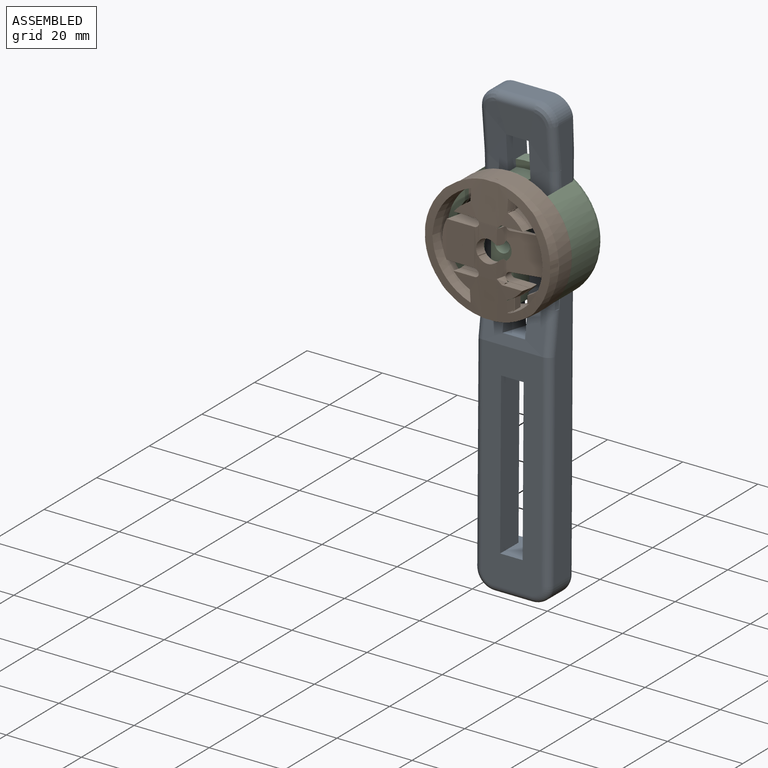
[diagram: assembled view]
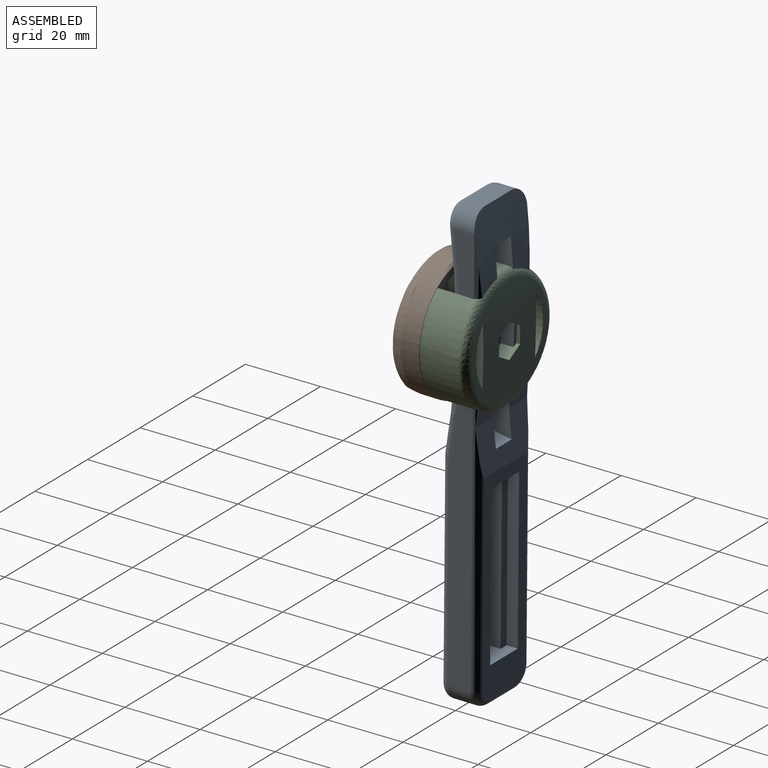
[diagram: assembled view, second angle]
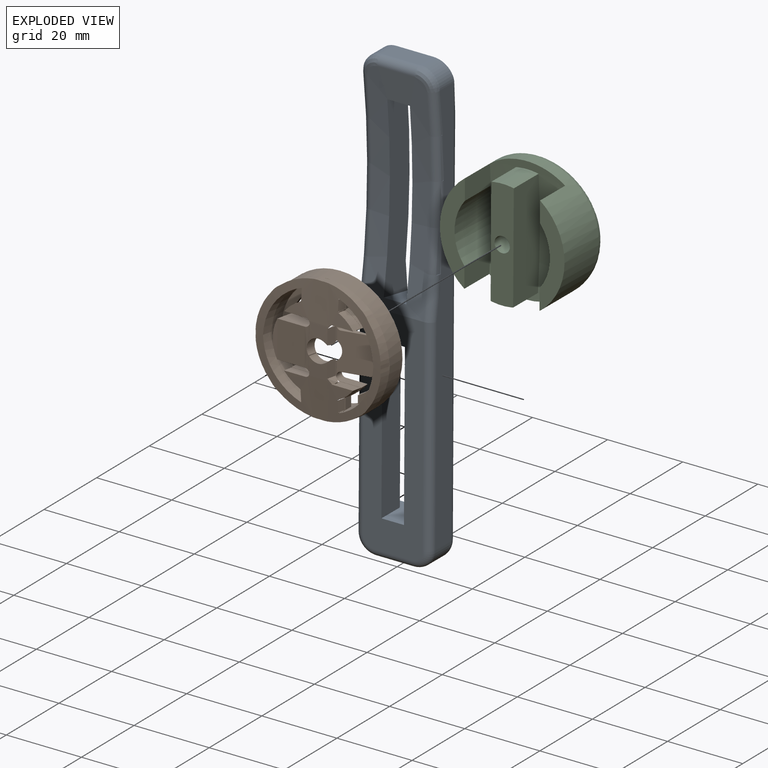
[diagram: exploded view]
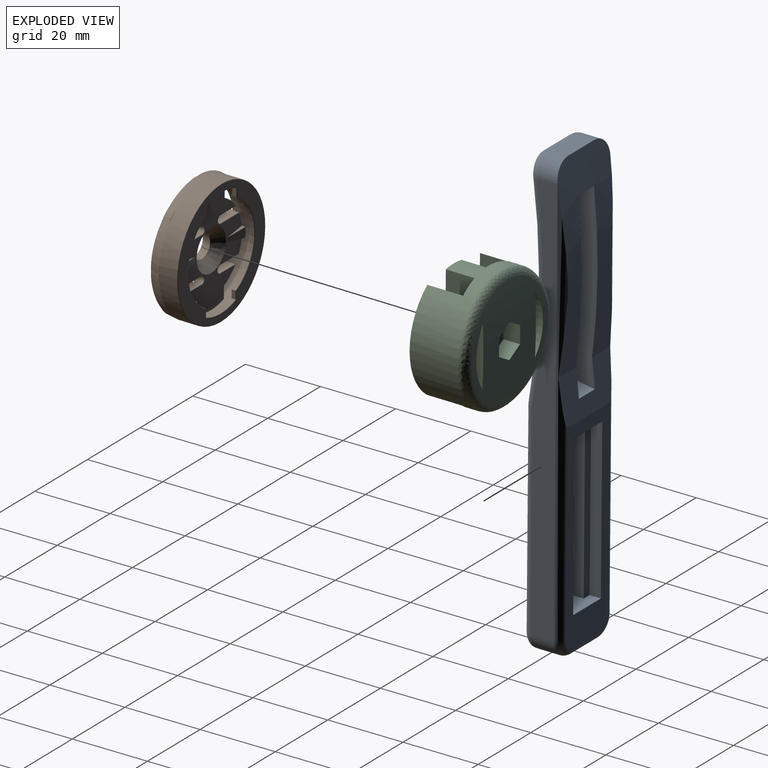
[diagram: exploded view, second angle]
ASSEMBLY  parts=3 mates=2
PART A: 40 faces, bbox 20.8x10x120.4 mm
  f0: plane 7x6mm, normal (0,-0.17,-0.98), area 42.6mm2, adj f1,f2,f12,f39
  f1: plane 42.68x7mm, normal (1,0,0), area 294.5mm2, adj f0,f11,f12,f39
  f2: plane 42.68x7mm, normal (-1,0,0), area 294.5mm2, adj f0,f11,f12,f39
  f3: plane 54.16x16mm, normal (0,1,0), area 414.5mm2, adj f11,f30,f31,f32,f33,f34,f35,f36
  f4: plane 10x5.15mm, normal (0,0,1), area 51.5mm2, adj f14,f15,f18,f23
  f5: plane 48.83x9.56mm, normal (1,0,0), area 365.4mm2, adj f9,f13,f14,f29,f30
  f6: plane 48.83x9.56mm, normal (-1,0,0), area 365.4mm2, adj f9,f13,f14,f29,f30
  f7: plane 110x6mm, normal (-1,0,0), area 561.4mm2, adj f15,f16,f27,f28,f31
  f8: plane 110x6mm, normal (1,0,0), area 561.4mm2, adj f17,f18,f19,f20,f35
  f9: plane 7.5x6mm, normal (0,0,-1), area 45mm2, adj f5,f6,f13,f14
  f10: plane 10x6mm, normal (0,0,-1), area 60mm2, adj f16,f17,f24,f33
  f11: plane 10.5x10mm, normal (0,0,1), area 73.5mm2, adj f1,f2,f3,f12,f36,f38,f39
  f12: plane 58x16mm, normal (0,-1,0), area 668mm2, adj f0,f1,f2,f11,f13,f20,f22,f24
  f13: cylinder r=181.25mm len=57.69mm, axis (1,0,0), area 633.8mm2, adj f5,f6,f9,f12,f19,f21,f23,f25
  f14: cylinder r=181.25mm len=51.37mm, axis (1,0,0), area 751.6mm2, adj f4,f5,f6,f9,f15,f18,f30,f31
  f15: cylinder r=5mm len=5.87mm, axis (0,-1,0), area 41.7mm2, adj f4,f7,f14,f25,f31
  f16: cylinder r=5mm len=6mm, axis (0,1,0), area 47.1mm2, adj f7,f10,f26,f32
  f17: cylinder r=5mm len=6mm, axis (0,-1,0), area 47.1mm2, adj f8,f10,f22,f34
  f18: cylinder r=5mm len=5.87mm, axis (0,1,0), area 41.7mm2, adj f4,f8,f14,f21,f35
  f19: torus R=183.25mm, axis (1,0,0), area 173mm2, adj f8,f13,f20,f21
  f20: cylinder r=2mm len=55mm, axis (0,0,1), area 172.5mm2, adj f8,f12,f19,f22
  f21: bspline ~6.37x6.2mm, area 22.6mm2, adj f13,f18,f19,f23
  f22: torus R=3mm, axis (0,-1,0), area 21.1mm2, adj f12,f17,f20,f24
  f23: cylinder r=2mm len=10mm, axis (1,0,0), area 34.5mm2, adj f4,f13,f21,f25
  f24: cylinder r=2mm len=10mm, axis (1,0,0), area 31.4mm2, adj f10,f12,f22,f26
  f25: bspline ~6.2x5.55mm, area 22.6mm2, adj f13,f15,f23,f27
  f26: torus R=3mm, axis (0,-1,0), area 21.1mm2, adj f12,f16,f24,f28
  f27: torus R=183.25mm, axis (1,0,0), area 173mm2, adj f7,f13,f25,f28
  f28: cylinder r=2mm len=55mm, axis (0,0,-1), area 172.5mm2, adj f7,f12,f26,f27
  f29: plane 9.05x6mm, normal (0,0.17,0.98), area 55.1mm2, adj f5,f6,f13,f30
  f30: plane 19.72x12.47mm, normal (0,0.99,0.1), area 189.3mm2, adj f3,f5,f6,f14,f29,f31,f35
  f31: cylinder r=2mm len=110.35mm, axis (0,0,-1), area 266.8mm2, adj f3,f7,f14,f15,f30,f32
  f32: torus R=3mm, axis (0,-1,0), area 21.1mm2, adj f3,f16,f31,f33
  f33: cylinder r=2mm len=10mm, axis (-1,0,0), area 31.4mm2, adj f3,f10,f32,f34
  f34: torus R=3mm, axis (0,-1,0), area 21.1mm2, adj f3,f17,f33,f35
  f35: cylinder r=2mm len=110.35mm, axis (0,0,-1), area 267.2mm2, adj f3,f8,f14,f18,f30,f34
  f36: plane 42.68x3mm, normal (1,0,0), area 128mm2, adj f3,f11,f37,f39
  f37: plane 10.5x3mm, normal (0,0,-1), area 31.5mm2, adj f3,f36,f38,f39
  f38: plane 42.68x3mm, normal (-1,0,0), area 128mm2, adj f3,f11,f37,f39
  f39: plane 42.68x10.5mm, normal (0,1,0), area 199.5mm2, adj f0,f1,f2,f11,f36,f37,f38
PART B: 297 faces, bbox 36.2x7.7x36.2 mm
  f0: plane 3.71x0.2mm, normal (-1,0,0), area 0.4mm2, adj f2,f36,f62,f156,f294
  f1: plane 3.71x0.2mm, normal (1,0,0), area 0.4mm2, adj f3,f15,f52,f157,f294
  f2: cylinder r=0.1mm len=3.74mm, axis (0,0,1), area 0.6mm2, adj f0,f9,f127,f294
  f3: cylinder r=0.1mm len=3.74mm, axis (0,0,-1), area 0.6mm2, adj f1,f12,f142,f294
  f4: plane 3.71x0.2mm, normal (-1,0,0), area 0.4mm2, adj f6,f49,f62,f150,f294
  f5: plane 3.71x0.2mm, normal (1,0,0), area 0.4mm2, adj f7,f17,f43,f163,f294
  f6: cylinder r=0.1mm len=3.74mm, axis (0,0,1), area 0.6mm2, adj f4,f10,f126,f294
  f7: cylinder r=0.1mm len=3.74mm, axis (0,0,-1), area 0.6mm2, adj f5,f14,f141,f294
  f8: cylinder r=181.25mm len=33.2mm, axis (1,0,0), area 426.1mm2, adj f9,f10,f11,f12,f13,f14,f228,f229
  f9: plane 4.23x2.52mm, normal (-0.98,0.21,0), area 10.3mm2, adj f2,f8,f13,f253,f294,f295
  f10: plane 4.23x2.52mm, normal (-0.98,0.21,0), area 10.3mm2, adj f6,f8,f11,f268,f294,f296
  f11: extruded ~5.29x2.24mm, area 11.7mm2, adj f8,f10,f12,f294,f296
  f12: plane 4.22x2.51mm, normal (0.98,-0.21,0), area 10.5mm2, adj f3,f8,f11,f269,f294
  f13: extruded ~5.29x2.24mm, area 11.6mm2, adj f8,f9,f14,f294,f295
  f14: plane 4.22x2.51mm, normal (0.98,-0.21,0), area 10.5mm2, adj f7,f8,f13,f287,f294
  f15: plane 3.99x2.75mm, normal (-0.98,0.21,0), area 10.5mm2, adj f1,f16,f288,f293,f294
  f16: extruded ~3.32x2.38mm, area 8.2mm2, adj f15,f17,f288,f294
  f17: plane 3.99x2.75mm, normal (-0.98,0.21,0), area 10.5mm2, adj f5,f16,f288,f289,f294
  f18: cylinder r=14.6mm len=29.2mm, axis (0,1,0), area 316.3mm2, adj f64,f66,f67,f70,f78,f81,f92,f94
  f19: cylinder r=11.7mm len=2.81mm, axis (0,1,0), area 2.5mm2, adj f56,f57,f60,f153
  f20: cylinder r=11.7mm len=2.01mm, axis (0,1,0), area 0.2mm2, adj f106,f153,f205
  f21: cylinder r=11.7mm len=2.01mm, axis (0,1,0), area 0.2mm2, adj f104,f160,f186
  f22: cylinder r=11.7mm len=2.81mm, axis (0,1,0), area 2.5mm2, adj f58,f59,f61,f160
  f23: cylinder r=16.7mm len=33.4mm, axis (0,1,0), area 512.5mm2, adj f63,f166,f167,f168,f169,f170,f171,f172
  f24: plane 29x23.03mm, normal (0,-1,0), area 297.2mm2, adj f56,f57,f58,f59,f60,f61,f178,f179
  f25: plane 33.2x33.2mm, normal (0,-1,0), area 311.5mm2, adj f63,f73,f74,f76,f77,f78,f79,f80
  f26: plane 2.07x1mm, normal (1,0,0), area 2.1mm2, adj f67,f68,f77,f90
  f27: cylinder r=12.6mm len=22.47mm, axis (0,-1,0), area 27.7mm2, adj f68,f69,f73,f89
  f28: plane 2.07x1mm, normal (1,0,0), area 2.1mm2, adj f69,f70,f74,f93
  f29: plane 26.62x8.75mm, normal (0,1,0), area 55.5mm2, adj f89,f90,f93,f94
  f30: plane 2.07x1mm, normal (-1,0,0), area 2.1mm2, adj f64,f65,f82,f98
  f31: cylinder r=12.6mm len=22.47mm, axis (0,-1,0), area 27.7mm2, adj f65,f71,f86,f97
  f32: plane 2.07x1mm, normal (-1,0,0), area 2.1mm2, adj f66,f71,f85,f101
  f33: plane 26.62x8.75mm, normal (0,1,0), area 55.5mm2, adj f97,f98,f101,f102
  f34: cylinder r=11.7mm len=2.01mm, axis (0,1,0), area 0.2mm2, adj f107,f153,f196
  f35: plane 7.01x1.68mm, normal (0,0,1), area 6.4mm2, adj f36,f107,f155,f198
  f36: cylinder r=1mm len=2.1mm, axis (0,1,0), area 6.1mm2, adj f0,f35,f37,f127,f156,f199
  f37: plane 5.67x2.1mm, normal (0,0,-1), area 11.9mm2, adj f36,f108,f128,f200
  f38: cylinder r=11.7mm len=4.2mm, axis (0,1,0), area 11.4mm2, adj f108,f109,f130,f131,f202
  f39: plane 2.93x2.1mm, normal (-1,0,0), area 6.2mm2, adj f109,f110,f133,f204
  f40: plane 2.93x2.1mm, normal (1,0,0), area 6.2mm2, adj f111,f112,f136,f178
  f41: cylinder r=11.7mm len=4.2mm, axis (0,1,0), area 11.4mm2, adj f112,f113,f138,f180
  f42: plane 5.67x2.1mm, normal (0,0,-1), area 11.9mm2, adj f43,f113,f140,f182
  f43: cylinder r=1mm len=2.1mm, axis (0,1,0), area 6.1mm2, adj f5,f42,f44,f141,f163,f183
  f44: plane 7.01x1.68mm, normal (0,0,1), area 6.4mm2, adj f43,f104,f162,f184
  f45: cylinder r=11.7mm len=2.01mm, axis (0,1,0), area 0.2mm2, adj f105,f160,f195
  f46: plane 2.93x2.1mm, normal (-1,0,0), area 6.2mm2, adj f117,f118,f121,f213
  f47: cylinder r=11.7mm len=4.2mm, axis (0,1,0), area 11.4mm2, adj f118,f119,f123,f211
  f48: plane 5.67x2.1mm, normal (0,0,1), area 11.9mm2, adj f49,f119,f125,f209
  f49: cylinder r=1mm len=2.1mm, axis (0,1,0), area 6.1mm2, adj f4,f48,f50,f126,f150,f208
  f50: plane 7.01x1.68mm, normal (0,0,-1), area 6.4mm2, adj f49,f106,f151,f207
  f51: plane 7.01x1.68mm, normal (0,0,-1), area 6.4mm2, adj f52,f105,f158,f193
  f52: cylinder r=1mm len=2.1mm, axis (0,1,0), area 6.1mm2, adj f1,f51,f53,f142,f157,f192
  f53: plane 5.67x2.1mm, normal (0,0,1), area 11.9mm2, adj f52,f115,f143,f191
  f54: cylinder r=11.7mm len=4.2mm, axis (0,1,0), area 11.4mm2, adj f114,f115,f145,f146,f189
  f55: plane 2.93x2.1mm, normal (1,0,0), area 6.2mm2, adj f114,f116,f148,f187
  f56: plane 5.43x0.96mm, normal (0.14,-0.14,-0.98), area 2.5mm2, adj f19,f24,f60,f153,f205
  f57: plane 5.43x0.96mm, normal (0.14,-0.14,0.98), area 2.5mm2, adj f19,f24,f60,f153,f196
  f58: plane 5.43x0.96mm, normal (-0.14,-0.14,0.98), area 2.5mm2, adj f22,f24,f61,f160,f186
  f59: plane 5.43x0.96mm, normal (-0.14,-0.14,-0.98), area 2.5mm2, adj f22,f24,f61,f160,f195
  f60: plane 5.52x2.57mm, normal (0.16,-0.99,0), area 10.4mm2, adj f19,f24,f56,f57
  f61: plane 5.52x2.57mm, normal (-0.16,-0.99,0), area 10.4mm2, adj f22,f24,f58,f59
  f62: plane 11.18x9.12mm, normal (-0.21,0.98,0), area 83.8mm2, adj f0,f4,f150,f151,f153,f155,f156,f294
  f63: torus R=16.6mm, axis (0,-1,0), area 16.4mm2, adj f23,f25
  f64: cylinder r=0.1mm len=1mm, axis (0,1,0), area 0.1mm2, adj f18,f30,f80,f100
  f65: cylinder r=0.1mm len=1mm, axis (0,-1,0), area 0.1mm2, adj f30,f31,f84,f96
  f66: cylinder r=0.1mm len=1mm, axis (0,1,0), area 0.1mm2, adj f18,f32,f83,f103
  f67: cylinder r=0.1mm len=1mm, axis (0,1,0), area 0.1mm2, adj f18,f26,f79,f92
  f68: cylinder r=0.1mm len=1mm, axis (0,-1,0), area 0.1mm2, adj f26,f27,f75,f88
  f69: cylinder r=0.1mm len=1mm, axis (0,-1,0), area 0.1mm2, adj f27,f28,f72,f91
  f70: cylinder r=0.1mm len=1mm, axis (0,1,0), area 0.1mm2, adj f18,f28,f76,f95
  f71: cylinder r=0.1mm len=1mm, axis (0,-1,0), area 0.1mm2, adj f31,f32,f87,f99
  f72: sphere r=0.1mm, area 0mm2, adj f69,f73,f74
  f73: torus R=12.7mm, axis (0,-1,0), area 4.4mm2, adj f25,f27,f72,f75
  f74: cylinder r=0.1mm len=2.07mm, axis (0,0,1), area 0.3mm2, adj f25,f28,f72,f76
  f75: sphere r=0.1mm, area 0mm2, adj f68,f73,f77
  f76: torus R=0.2mm, axis (0,-1,0), area 0mm2, adj f25,f70,f74,f78
  f77: cylinder r=0.1mm len=2.07mm, axis (0,0,1), area 0.3mm2, adj f25,f26,f75,f79
  f78: torus R=14.7mm, axis (0,-1,0), area 1.8mm2, adj f18,f25,f76,f80
  f79: torus R=0.2mm, axis (0,-1,0), area 0mm2, adj f25,f67,f77,f81
  f80: torus R=0.2mm, axis (0,-1,0), area 0mm2, adj f25,f64,f78,f82
  f81: torus R=14.7mm, axis (0,-1,0), area 1.8mm2, adj f18,f25,f79,f83
  f82: cylinder r=0.1mm len=2.07mm, axis (0,0,-1), area 0.3mm2, adj f25,f30,f80,f84
  f83: torus R=0.2mm, axis (0,-1,0), area 0mm2, adj f25,f66,f81,f85
  f84: sphere r=0.1mm, area 0mm2, adj f65,f82,f86
  f85: cylinder r=0.1mm len=2.07mm, axis (0,0,-1), area 0.3mm2, adj f25,f32,f83,f87
  f86: torus R=12.7mm, axis (0,-1,0), area 4.4mm2, adj f25,f31,f84,f87
  f87: sphere r=0.1mm, area 0mm2, adj f71,f85,f86
  f88: sphere r=0.1mm, area 0mm2, adj f68,f89,f90
  f89: torus R=12.7mm, axis (0,-1,0), area 4.4mm2, adj f27,f29,f88,f91
  f90: cylinder r=0.1mm len=2.07mm, axis (0,0,-1), area 0.3mm2, adj f26,f29,f88,f92
  f91: sphere r=0.1mm, area 0mm2, adj f69,f89,f93
  f92: bspline ~0.24x0.22mm, area 0mm2, adj f18,f67,f90,f94
  f93: cylinder r=0.1mm len=2.07mm, axis (0,0,-1), area 0.3mm2, adj f28,f29,f91,f95
  f94: torus R=14.5mm, axis (0,-1,0), area 5.3mm2, adj f18,f29,f92,f95
  f95: bspline ~0.25x0.22mm, area 0mm2, adj f18,f70,f93,f94
  f96: sphere r=0.1mm, area 0mm2, adj f65,f97,f98
  f97: torus R=12.7mm, axis (0,1,0), area 4.4mm2, adj f31,f33,f96,f99
  f98: cylinder r=0.1mm len=2.07mm, axis (0,0,-1), area 0.3mm2, adj f30,f33,f96,f100
  f99: sphere r=0.1mm, area 0mm2, adj f71,f97,f101
  f100: bspline ~0.24x0.22mm, area 0mm2, adj f18,f64,f98,f102
  f101: cylinder r=0.1mm len=2.07mm, axis (0,0,-1), area 0.3mm2, adj f32,f33,f99,f103
  f102: torus R=14.5mm, axis (0,1,0), area 5.3mm2, adj f18,f33,f100,f103
  f103: bspline ~0.25x0.22mm, area 0mm2, adj f18,f66,f101,f102
  f104: cylinder r=0.1mm len=0.16mm, axis (0,1,0), area 0mm2, adj f21,f44,f161,f185
  f105: cylinder r=0.1mm len=0.16mm, axis (0,1,0), area 0mm2, adj f45,f51,f159,f194
  f106: cylinder r=0.1mm len=0.16mm, axis (0,1,0), area 0mm2, adj f20,f50,f152,f206
  f107: cylinder r=0.1mm len=0.16mm, axis (0,1,0), area 0mm2, adj f34,f35,f154,f197
  f108: cylinder r=0.1mm len=2.1mm, axis (0,1,0), area 0.5mm2, adj f37,f38,f129,f201
  f109: cylinder r=0.1mm len=2.1mm, axis (0,1,0), area 0.2mm2, adj f38,f39,f132,f203
  f110: cylinder r=0.1mm len=2.1mm, axis (0,1,0), area 0.4mm2, adj f18,f39,f134,f219
  f111: cylinder r=0.1mm len=2.1mm, axis (0,1,0), area 0.4mm2, adj f18,f40,f135,f217
  f112: cylinder r=0.1mm len=2.1mm, axis (0,1,0), area 0.2mm2, adj f40,f41,f137,f179
  f113: cylinder r=0.1mm len=2.1mm, axis (0,1,0), area 0.5mm2, adj f41,f42,f139,f181
  f114: cylinder r=0.1mm len=2.1mm, axis (0,1,0), area 0.2mm2, adj f54,f55,f147,f188
  f115: cylinder r=0.1mm len=2.1mm, axis (0,1,0), area 0.5mm2, adj f53,f54,f144,f190
  f116: cylinder r=0.1mm len=2.1mm, axis (0,1,0), area 0.4mm2, adj f18,f55,f149,f216
  f117: cylinder r=0.1mm len=2.1mm, axis (0,1,0), area 0.4mm2, adj f18,f46,f120,f214
  f118: cylinder r=0.1mm len=2.1mm, axis (0,1,0), area 0.2mm2, adj f46,f47,f122,f212
  f119: cylinder r=0.1mm len=2.1mm, axis (0,1,0), area 0.5mm2, adj f47,f48,f124,f210
  f120: torus R=0.2mm, axis (0,-1,0), area 0mm2, adj f18,f117,f121,f263
  f121: cylinder r=0.1mm len=2.93mm, axis (0,0,-1), area 0.5mm2, adj f46,f120,f122,f264
  f122: torus R=0.2mm, axis (0,-1,0), area 0mm2, adj f118,f121,f123,f265
  f123: torus R=11.6mm, axis (0,-1,0), area 0.9mm2, adj f47,f122,f124,f266
  f124: sphere r=0.1mm, area 0mm2, adj f119,f123,f125
  f125: cylinder r=0.1mm len=5.67mm, axis (-1,0,0), area 0.9mm2, adj f48,f124,f126,f267
  f126: torus R=1.1mm, axis (0,-1,0), area 0.3mm2, adj f6,f49,f125,f268
  f127: torus R=1.1mm, axis (0,-1,0), area 0.3mm2, adj f2,f36,f128,f253
  f128: cylinder r=0.1mm len=5.67mm, axis (1,0,0), area 0.9mm2, adj f37,f127,f129,f254
  f129: sphere r=0.1mm, area 0mm2, adj f108,f128,f130
  f130: torus R=11.6mm, axis (0,-1,0), area 0.2mm2, adj f38,f129,f131,f255
  f131: torus R=11.6mm, axis (0,-1,0), area 0.6mm2, adj f38,f130,f132,f255
  f132: torus R=0.2mm, axis (0,-1,0), area 0mm2, adj f109,f131,f133,f256
  f133: cylinder r=0.1mm len=2.93mm, axis (0,0,-1), area 0.5mm2, adj f39,f132,f134,f257
  f134: torus R=0.2mm, axis (0,-1,0), area 0mm2, adj f18,f110,f133,f258
  f135: torus R=0.2mm, axis (0,-1,0), area 0mm2, adj f18,f111,f136,f279
  f136: cylinder r=0.1mm len=2.93mm, axis (0,0,1), area 0.5mm2, adj f40,f135,f137,f280
  f137: torus R=0.2mm, axis (0,-1,0), area 0mm2, adj f112,f136,f138,f281
  f138: torus R=11.6mm, axis (0,-1,0), area 0.9mm2, adj f41,f137,f139,f282
  f139: sphere r=0.1mm, area 0mm2, adj f113,f138,f140
  f140: cylinder r=0.1mm len=5.67mm, axis (1,0,0), area 0.9mm2, adj f42,f139,f141,f283
  f141: torus R=1.1mm, axis (0,-1,0), area 0.3mm2, adj f7,f43,f140,f287
  f142: torus R=1.1mm, axis (0,-1,0), area 0.3mm2, adj f3,f52,f143,f269
  f143: cylinder r=0.1mm len=5.67mm, axis (-1,0,0), area 0.9mm2, adj f53,f142,f144,f270
  f144: sphere r=0.1mm, area 0mm2, adj f115,f143,f145
  f145: torus R=11.6mm, axis (0,-1,0), area 0.2mm2, adj f54,f144,f146,f271
  f146: torus R=11.6mm, axis (0,-1,0), area 0.6mm2, adj f54,f145,f147,f271
  f147: torus R=0.2mm, axis (0,-1,0), area 0mm2, adj f114,f146,f148,f272
  f148: cylinder r=0.1mm len=2.93mm, axis (0,0,1), area 0.5mm2, adj f55,f147,f149,f273
  f149: torus R=0.2mm, axis (0,-1,0), area 0mm2, adj f18,f116,f148,f274
  f150: bspline ~1.15x1.1mm, area 0.2mm2, adj f4,f49,f62,f151
  f151: cylinder r=0.1mm len=7.04mm, axis (0.98,0.21,0), area 1.1mm2, adj f50,f62,f150,f152
  f152: sphere r=0.1mm, area 0mm2, adj f106,f151,f153
  f153: bspline ~12.58x1.89mm, area 1.3mm2, adj f19,f20,f34,f56,f57,f62,f152,f154
  f154: sphere r=0.1mm, area 0mm2, adj f107,f153,f155
  f155: cylinder r=0.1mm len=7.04mm, axis (-0.98,-0.21,0), area 1.1mm2, adj f35,f62,f154,f156
  f156: bspline ~1.1x1.1mm, area 0.2mm2, adj f0,f36,f62,f155
  f157: bspline ~1.1x1.1mm, area 0.2mm2, adj f1,f52,f158,f293
  f158: cylinder r=0.1mm len=7.04mm, axis (0.98,-0.21,0), area 1.1mm2, adj f51,f157,f159,f292
  f159: sphere r=0.1mm, area 0mm2, adj f105,f158,f160
  f160: bspline ~12.58x1.89mm, area 1.3mm2, adj f21,f22,f45,f58,f59,f159,f161,f186
  f161: sphere r=0.1mm, area 0mm2, adj f104,f160,f162
  f162: cylinder r=0.1mm len=7.04mm, axis (-0.98,0.21,0), area 1.1mm2, adj f44,f161,f163,f290
  f163: bspline ~1.1x1.1mm, area 0.2mm2, adj f5,f43,f162,f289
  f164: bspline ~6.23x0.62mm, area 0.3mm2, adj f18,f260,f261
  f165: bspline ~6.23x0.62mm, area 0.3mm2, adj f18,f276,f277
  f166: bspline ~2.17x1.96mm, area 0.1mm2, adj f23,f167,f284
  f167: torus R=16.8mm, axis (0,1,0), area 0.2mm2, adj f23,f166,f168,f252
  f168: bspline ~2.04x1.85mm, area 0.1mm2, adj f23,f167,f251
  f169: bspline ~2.04x1.85mm, area 0.1mm2, adj f23,f170,f230
  f170: torus R=16.8mm, axis (0,1,0), area 0.2mm2, adj f23,f169,f171,f231
  f171: bspline ~2.17x1.96mm, area 0.1mm2, adj f23,f170,f232
  f172: bspline ~2.17x1.96mm, area 0.1mm2, adj f23,f173,f239
  f173: torus R=16.8mm, axis (0,1,0), area 0.2mm2, adj f23,f172,f174,f238
  f174: bspline ~2.04x1.85mm, area 0.1mm2, adj f23,f173,f237
  f175: bspline ~2.17x1.96mm, area 0.1mm2, adj f23,f176,f246
  f176: torus R=16.8mm, axis (0,1,0), area 0.2mm2, adj f23,f175,f177,f245
  f177: bspline ~2.04x1.85mm, area 0.1mm2, adj f23,f176,f244
  f178: cylinder r=0.1mm len=3.01mm, axis (0,0,-1), area 0.5mm2, adj f24,f40,f179,f217
  f179: torus R=0.2mm, axis (0,-1,0), area 0mm2, adj f24,f112,f178,f180
  f180: torus R=11.6mm, axis (0,-1,0), area 0.9mm2, adj f24,f41,f179,f181
  f181: sphere r=0.1mm, area 0mm2, adj f113,f180,f182
  f182: cylinder r=0.1mm len=5.67mm, axis (-1,0,0), area 0.9mm2, adj f24,f42,f181,f183
  f183: torus R=1.1mm, axis (0,-1,0), area 0.5mm2, adj f24,f43,f182,f184
  f184: cylinder r=0.1mm len=7.01mm, axis (1,0,0), area 1.1mm2, adj f24,f44,f183,f185
  f185: sphere r=0.1mm, area 0mm2, adj f104,f184,f186
  f186: torus R=11.6mm, axis (0,-1,0), area 0.6mm2, adj f21,f24,f58,f160,f185
  f187: cylinder r=0.1mm len=3.01mm, axis (0,0,-1), area 0.5mm2, adj f24,f55,f188,f216
  f188: torus R=0.2mm, axis (0,-1,0), area 0mm2, adj f24,f114,f187,f189
  f189: torus R=11.6mm, axis (0,-1,0), area 0.9mm2, adj f24,f54,f188,f190
  f190: sphere r=0.1mm, area 0mm2, adj f115,f189,f191
  f191: cylinder r=0.1mm len=5.67mm, axis (1,0,0), area 0.9mm2, adj f24,f53,f190,f192
  f192: torus R=1.1mm, axis (0,-1,0), area 0.5mm2, adj f24,f52,f191,f193
  f193: cylinder r=0.1mm len=7.01mm, axis (-1,0,0), area 1.1mm2, adj f24,f51,f192,f194
  f194: sphere r=0.1mm, area 0mm2, adj f105,f193,f195
  f195: torus R=11.6mm, axis (0,-1,0), area 0.6mm2, adj f24,f45,f59,f160,f194
  f196: torus R=11.6mm, axis (0,-1,0), area 0.6mm2, adj f24,f34,f57,f153,f197
  f197: sphere r=0.1mm, area 0mm2, adj f107,f196,f198
  f198: cylinder r=0.1mm len=7.01mm, axis (1,0,0), area 1.1mm2, adj f24,f35,f197,f199
  f199: torus R=1.1mm, axis (0,-1,0), area 0.5mm2, adj f24,f36,f198,f200
  f200: cylinder r=0.1mm len=5.67mm, axis (-1,0,0), area 0.9mm2, adj f24,f37,f199,f201
  f201: sphere r=0.1mm, area 0mm2, adj f108,f200,f202
  f202: torus R=11.6mm, axis (0,-1,0), area 0.9mm2, adj f24,f38,f201,f203
  f203: torus R=0.2mm, axis (0,-1,0), area 0mm2, adj f24,f109,f202,f204
  f204: cylinder r=0.1mm len=3.01mm, axis (0,0,1), area 0.5mm2, adj f24,f39,f203,f219
  f205: torus R=11.6mm, axis (0,-1,0), area 0.6mm2, adj f20,f24,f56,f153,f206
  f206: sphere r=0.1mm, area 0mm2, adj f106,f205,f207
  f207: cylinder r=0.1mm len=7.01mm, axis (-1,0,0), area 1.1mm2, adj f24,f50,f206,f208
  f208: torus R=1.1mm, axis (0,-1,0), area 0.5mm2, adj f24,f49,f207,f209
  f209: cylinder r=0.1mm len=5.67mm, axis (1,0,0), area 0.9mm2, adj f24,f48,f208,f210
  f210: sphere r=0.1mm, area 0mm2, adj f119,f209,f211
  f211: torus R=11.6mm, axis (0,-1,0), area 0.9mm2, adj f24,f47,f210,f212
  f212: torus R=0.2mm, axis (0,-1,0), area 0mm2, adj f24,f118,f211,f213
  f213: cylinder r=0.1mm len=3.01mm, axis (0,0,1), area 0.5mm2, adj f24,f46,f212,f214
  f214: bspline ~0.26x0.21mm, area 0mm2, adj f18,f117,f213,f215
  f215: torus R=14.5mm, axis (0,-1,0), area 1.6mm2, adj f18,f24,f214,f216
  f216: bspline ~0.25x0.24mm, area 0mm2, adj f18,f116,f187,f215
  f217: bspline ~0.26x0.21mm, area 0mm2, adj f18,f111,f178,f218
  f218: torus R=14.5mm, axis (0,-1,0), area 1.6mm2, adj f18,f24,f217,f219
  f219: bspline ~0.25x0.24mm, area 0mm2, adj f18,f110,f204,f218
  f220: bspline ~5.1x0.44mm, area 0.2mm2, adj f23,f221,f228
  f221: bspline ~4.71x0.45mm, area 0.2mm2, adj f23,f220,f285
  f222: bspline ~5.09x0.45mm, area 0.2mm2, adj f23,f223,f234
  f223: bspline ~4.71x0.44mm, area 0.2mm2, adj f23,f222,f235
  f224: bspline ~5.1x0.44mm, area 0.2mm2, adj f23,f225,f249
  f225: bspline ~4.71x0.45mm, area 0.2mm2, adj f23,f224,f248
  f226: bspline ~5.09x0.45mm, area 0.2mm2, adj f23,f227,f241
  f227: bspline ~4.71x0.44mm, area 0.2mm2, adj f23,f226,f242
  f228: extruded ~2.31x1.74mm, area 3.4mm2, adj f8,f220,f229,f285
  f229: extruded ~9.05x3.63mm, area 18mm2, adj f8,f23,f228,f230
  f230: extruded ~2.08x1.37mm, area 2.4mm2, adj f8,f169,f229,f231
  f231: extruded ~2.14x1.3mm, area 2.5mm2, adj f8,f170,f230,f232
  f232: extruded ~2.19x1.14mm, area 2.5mm2, adj f8,f171,f231,f233
  f233: extruded ~8.61x4.17mm, area 22.6mm2, adj f8,f23,f232,f234
  f234: extruded ~2.5x1.93mm, area 4.9mm2, adj f8,f222,f233,f235
  f235: extruded ~2.5x1.93mm, area 4.9mm2, adj f8,f223,f234,f236
  f236: extruded ~8.61x4.17mm, area 22.6mm2, adj f8,f23,f235,f237
  f237: extruded ~2.19x1.14mm, area 2.5mm2, adj f8,f174,f236,f238
  f238: extruded ~2.14x1.3mm, area 2.5mm2, adj f8,f173,f237,f239
  f239: extruded ~2.08x1.37mm, area 2.4mm2, adj f8,f172,f238,f240
  f240: extruded ~9.05x3.63mm, area 18mm2, adj f8,f23,f239,f241
  f241: extruded ~2.31x1.74mm, area 3.4mm2, adj f8,f226,f240,f242
  f242: extruded ~2.31x1.74mm, area 3.4mm2, adj f8,f227,f241,f243
  f243: extruded ~9.05x3.63mm, area 18mm2, adj f8,f23,f242,f244
  f244: extruded ~2.08x1.37mm, area 2.4mm2, adj f8,f177,f243,f245
  f245: extruded ~2.14x1.3mm, area 2.5mm2, adj f8,f176,f244,f246
  f246: extruded ~2.19x1.14mm, area 2.5mm2, adj f8,f175,f245,f247
  f247: extruded ~8.61x4.17mm, area 22.6mm2, adj f8,f23,f246,f248
  f248: extruded ~2.5x1.93mm, area 4.9mm2, adj f8,f23,f225,f247,f249
  f249: extruded ~2.5x1.93mm, area 4.9mm2, adj f8,f23,f224,f248,f250
  f250: extruded ~8.61x4.17mm, area 22.6mm2, adj f8,f23,f249,f251
  f251: extruded ~2.19x1.14mm, area 2.5mm2, adj f8,f168,f250,f252
  f252: extruded ~2.14x1.3mm, area 2.5mm2, adj f8,f167,f251,f284
  f253: extruded ~2.4x1.62mm, area 4.2mm2, adj f8,f9,f127,f254
  f254: plane 6.19x2.36mm, normal (0,0,-1), area 13.4mm2, adj f8,f128,f253,f255
  f255: extruded ~4.67x3.36mm, area 12.4mm2, adj f8,f130,f131,f254,f256
  f256: extruded ~2.2x0.59mm, area 0.5mm2, adj f8,f132,f255,f257
  f257: plane 2.94x2.19mm, normal (-0.98,0.21,0), area 6.3mm2, adj f8,f133,f256,f258
  f258: extruded ~1.99x0.51mm, area 0.4mm2, adj f8,f134,f257,f259
  f259: extruded ~11.82x10.04mm, area 36.2mm2, adj f8,f18,f258,f260
  f260: extruded ~2.5x1.9mm, area 4.9mm2, adj f8,f164,f259,f261
  f261: extruded ~2.5x1.9mm, area 4.9mm2, adj f8,f164,f260,f262
  f262: extruded ~11.82x10.04mm, area 36.2mm2, adj f8,f18,f261,f263
  f263: extruded ~1.99x0.51mm, area 0.4mm2, adj f8,f120,f262,f264
  f264: plane 2.94x2.19mm, normal (-0.98,0.21,0), area 6.3mm2, adj f8,f121,f263,f265
  f265: extruded ~2.2x0.59mm, area 0.5mm2, adj f8,f122,f264,f266
  f266: extruded ~4.67x3.36mm, area 12.4mm2, adj f8,f123,f265,f267
  f267: plane 6.19x2.36mm, normal (0,0,1), area 13.4mm2, adj f8,f125,f266,f268
  f268: extruded ~2.4x1.62mm, area 4.2mm2, adj f8,f10,f126,f267
  f269: extruded ~2.4x1.62mm, area 4.2mm2, adj f8,f12,f142,f270
  f270: plane 6.19x2.36mm, normal (0,0,1), area 13.4mm2, adj f8,f143,f269,f271
  f271: extruded ~4.67x3.36mm, area 12.4mm2, adj f8,f145,f146,f270,f272
  f272: extruded ~2.2x0.59mm, area 0.5mm2, adj f8,f147,f271,f273
  f273: plane 2.94x2.19mm, normal (0.98,-0.21,0), area 6.3mm2, adj f8,f148,f272,f274
  f274: extruded ~1.99x0.51mm, area 0.4mm2, adj f8,f149,f273,f275
  f275: extruded ~11.82x10.05mm, area 36.2mm2, adj f8,f18,f274,f276
  f276: extruded ~2.5x1.9mm, area 4.9mm2, adj f8,f165,f275,f277
  f277: extruded ~2.5x1.9mm, area 4.9mm2, adj f8,f165,f276,f278
  f278: extruded ~11.82x10.05mm, area 36.2mm2, adj f8,f18,f277,f279
  f279: extruded ~1.99x0.51mm, area 0.4mm2, adj f8,f135,f278,f280
  f280: plane 2.94x2.19mm, normal (0.98,-0.21,0), area 6.3mm2, adj f8,f136,f279,f281
  f281: extruded ~2.2x0.59mm, area 0.5mm2, adj f8,f137,f280,f282
  f282: extruded ~4.67x3.36mm, area 12.4mm2, adj f8,f138,f281,f283
  f283: plane 6.19x2.36mm, normal (0,0,-1), area 13.4mm2, adj f8,f140,f282,f287
  f284: extruded ~2.08x1.37mm, area 2.4mm2, adj f8,f166,f252,f286
  f285: extruded ~2.31x1.74mm, area 3.4mm2, adj f8,f221,f228,f286
  f286: extruded ~9.05x3.63mm, area 18mm2, adj f8,f23,f284,f285
  f287: extruded ~2.4x1.62mm, area 4.2mm2, adj f8,f14,f141,f283
  f288: cylinder r=181.25mm len=11.18mm, axis (1,0,0), area 90.7mm2, adj f15,f16,f17,f289,f290,f291,f292,f293
  f289: extruded ~3.08x1.64mm, area 3.7mm2, adj f17,f163,f288,f290
  f290: plane 7.97x4.38mm, normal (0,0,1), area 26.6mm2, adj f162,f288,f289,f291
  f291: extruded ~9.8x4.62mm, area 45.4mm2, adj f160,f288,f290,f292
  f292: plane 7.97x4.38mm, normal (0,0,-1), area 26.6mm2, adj f158,f288,f291,f293
  f293: extruded ~3.08x1.64mm, area 3.7mm2, adj f15,f157,f288,f292
  f294: cone r=2.75mm half-angle=45deg, axis (0,-1,0), area 94mm2, adj f0,f1,f2,f3,f4,f5,f6,f7
  f295: cylinder r=2.75mm len=1.02mm, axis (0,-1,0), area 0.5mm2, adj f8,f9,f13
  f296: cylinder r=2.75mm len=1.02mm, axis (0,-1,0), area 0.5mm2, adj f8,f10,f11
PART C: 31 faces, bbox 33.9x15.7x33.9 mm
  f0: cylinder r=181.25mm len=33.2mm, axis (-1,0,0), area 421.4mm2, adj f1,f2,f3,f4,f5,f8,f10,f19
  f1: plane 10.53x6.12mm, normal (-1,0,0), area 52.5mm2, adj f0,f19,f22,f23,f27
  f2: plane 10.54x6.13mm, normal (1,0,0), area 52.5mm2, adj f0,f18,f19,f20,f25
  f3: plane 10.53x6.12mm, normal (1,0,0), area 52.5mm2, adj f0,f18,f19,f20,f24
  f4: plane 15.66x5.17mm, normal (1,0,0), area 78.3mm2, adj f0,f7,f23
  f5: plane 15.66x5.17mm, normal (-1,0,0), area 78.3mm2, adj f0,f7,f20
  f6: cylinder r=2.05mm len=10.56mm, axis (0,-1,0), area 136mm2, adj f9,f17
  f7: cylinder r=186.25mm len=29.52mm, axis (-1,0,0), area 564.4mm2, adj f4,f5,f11,f12,f13,f14,f15,f16
  f8: cylinder r=14.6mm len=9.44mm, axis (0,-1,0), area 57mm2, adj f0,f9,f29,f30
  f9: plane 29.2x6mm, normal (0,-1,0), area 160.8mm2, adj f6,f8,f10,f29,f30
  f10: cylinder r=14.6mm len=9.44mm, axis (0,-1,0), area 57mm2, adj f0,f9,f29,f30
  f11: plane 4.43x4mm, normal (-0.5,0,-0.87), area 20.3mm2, adj f7,f12,f16,f17
  f12: plane 4.62x4.44mm, normal (-1,0,0), area 20.5mm2, adj f7,f11,f13,f17
  f13: plane 4.43x4mm, normal (-0.5,0,0.87), area 20.3mm2, adj f7,f12,f14,f17
  f14: plane 4.43x4mm, normal (0.5,0,0.87), area 20.3mm2, adj f7,f13,f15,f17
  f15: plane 4.62x4.44mm, normal (1,0,0), area 20.5mm2, adj f7,f14,f16,f17
  f16: plane 4.43x4mm, normal (0.5,0,-0.87), area 20.3mm2, adj f7,f11,f15,f17
  f17: plane 9.24x8mm, normal (0,1,0), area 42.2mm2, adj f6,f11,f12,f13,f14,f15,f16
  f18: plane 26.5x6.6mm, normal (0,-1,0), area 93.4mm2, adj f2,f3,f19,f20
  f19: cylinder r=16.6mm len=33.2mm, axis (0,1,0), area 924.4mm2, adj f0,f1,f2,f3,f18,f21,f22,f24
  f20: cylinder r=12.7mm len=15.66mm, axis (0,1,0), area 250.3mm2, adj f2,f3,f5,f7,f18
  f21: plane 10.54x6.13mm, normal (-1,0,0), area 52.5mm2, adj f0,f19,f22,f23,f26
  f22: plane 26.5x6.6mm, normal (0,-1,0), area 93.4mm2, adj f1,f19,f21,f23
  f23: cylinder r=12.7mm len=15.66mm, axis (0,1,0), area 250.3mm2, adj f1,f4,f7,f21,f22
  f24: bspline ~7x6.98mm, area 9.5mm2, adj f0,f3,f19
  f25: bspline ~7x6.98mm, area 9.5mm2, adj f0,f2,f19
  f26: bspline ~7x6.98mm, area 9.5mm2, adj f0,f19,f21
  f27: bspline ~7x6.98mm, area 9.5mm2, adj f0,f1,f19
  f28: bspline ~33.21x33.21mm, area 306.2mm2, adj f7,f19
  f29: plane 28.58x10mm, normal (1,0,0), area 280.4mm2, adj f0,f8,f9,f10
  f30: plane 28.58x10mm, normal (-1,0,0), area 280.4mm2, adj f0,f8,f9,f10
PLACE A rot(axis=(-1,0,0),0.5deg) t=(-27.78,-22.13,-1.25)mm fixed
PLACE B rot(axis=(0,0,1),180deg) t=(-27.78,-28.62,-4.79)mm
PLACE C rot(axis=(0,1,0),180deg) t=(-27.78,-25.79,55.19)mm
MATE fastened B.f18 <-> C.f6  axis (0,1,-0.01) through (-27.78,-26.06,25.19)mm
MATE planar A.f5 <-> C.f29  axis (1,0,0) through (-30.78,-16.16,24.37)mm
